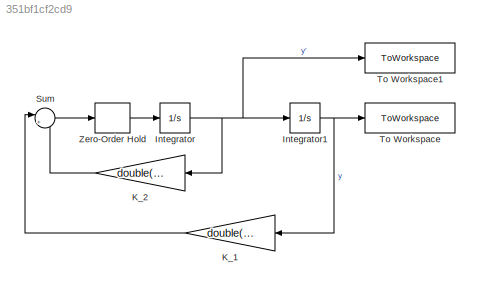
MODEL slx_351bf1cf2cd9
KIND model
CONFIG AbsTol = auto
CONFIG EnableMultiTasking = off
CONFIG FixedStep = 0.0001
CONFIG MaxStep = auto
CONFIG MinStep = auto
CONFIG RelTol = 1e-3
CONFIG SampleTimeConstraint = Unconstrained
CONFIG SolverName = FixedStepAuto
CONFIG StartTime = 0.0
CONFIG StopTime = 10.0
BLOCK [Integrator] Integrator
  Ports = [1, 1]
BLOCK [Integrator] Integrator1
  InitialCondition = ic
  Ports = [1, 1]
BLOCK [Gain] K_1
  Gain = double(K1_)
BLOCK [Gain] K_2
  Gain = double(K2_)
BLOCK [Sum] Sum
  Inputs = |++
  Ports = [2, 1]
BLOCK [ToWorkspace] To Workspace
  FixptAsFi = on
  MaxDataPoints = inf
  Ports = [1]
  SampleTime = -1
  SaveFormat = Timeseries
  VariableName = y
BLOCK [ToWorkspace] To Workspace1
  FixptAsFi = on
  MaxDataPoints = inf
  Ports = [1]
  SampleTime = -1
  SaveFormat = Timeseries
  VariableName = y_dot
BLOCK [ZeroOrderHold] Zero-Order Hold
  SampleTime = T
NET Integrator1:1 -> K_1:1, To Workspace:1
NET Integrator:1 -> Integrator1:1, K_2:1, To Workspace1:1
LINE K_1:1 -> Sum:1
LINE K_2:1 -> Sum:2
LINE Sum:1 -> Zero-Order Hold:1
LINE Zero-Order Hold:1 -> Integrator:1
note: NET lines group one-source signal fan-out (src -> all destinations, sorted); 1:1 wires keep LINE
